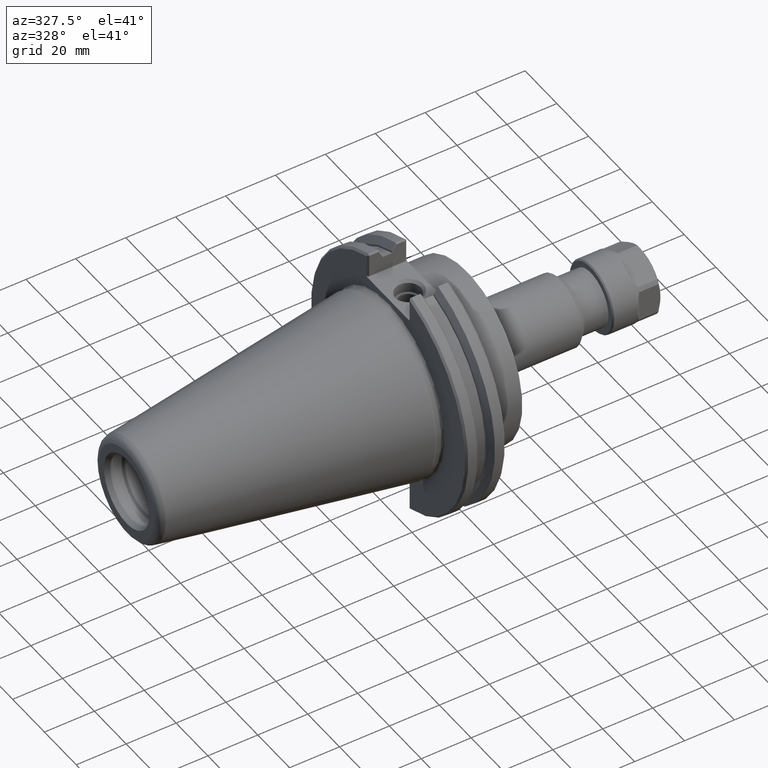
[diagram: clean part render]
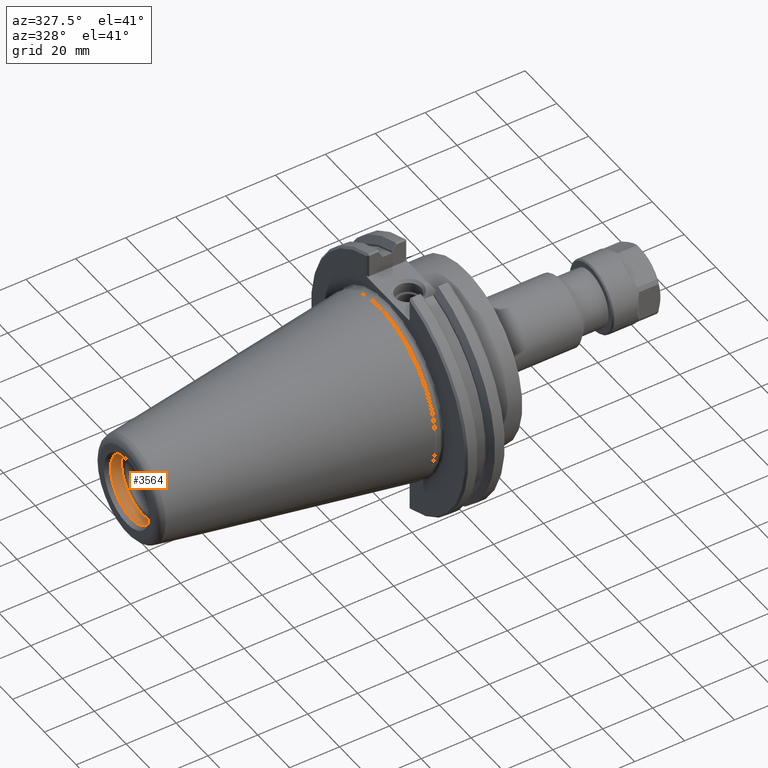
[diagram: same view with one face highlighted and labeled with its STEP entity id]
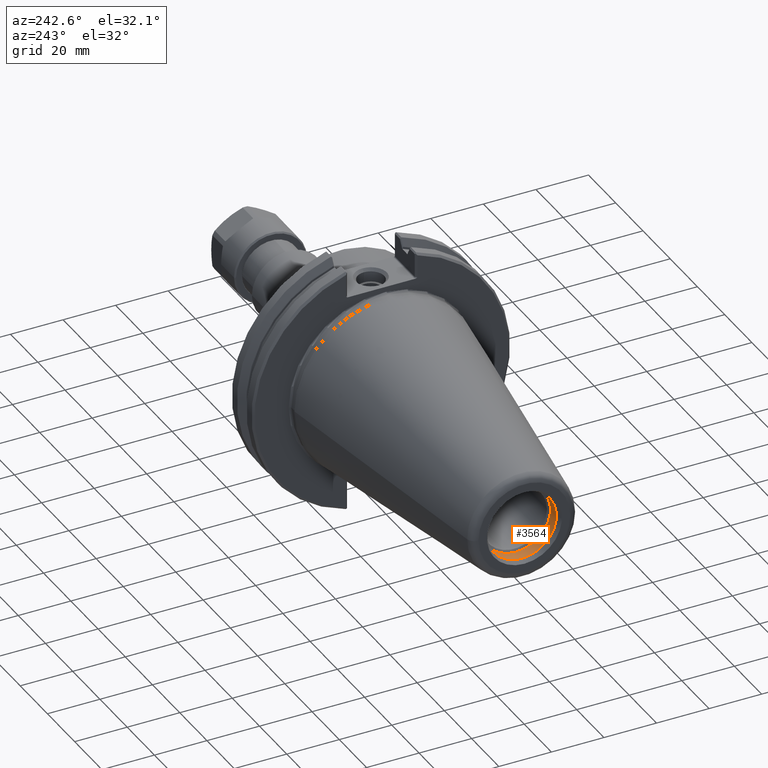
[diagram: same view with one face highlighted and labeled with its STEP entity id]
A machine part, auxiliary view. The second image highlights one B-rep face of the part: STEP entity #3564.
A second angle (auxiliary view) of the same face is appended — the face is thin or edge-on in the first view.
In plain terms, the highlighted cylindrical surface (bore or boss wall) has radius 13.1826 mm, axis along (-1, 0, 0).
Its self-contained STEP definition (entity closure, byte-faithful):
#3513=CARTESIAN_POINT('',(-3.75,0.0,0.519));
#3514=VERTEX_POINT('',#3513);
#3515=CARTESIAN_POINT('',(-3.75,0.0,0.0));
#3516=DIRECTION('',(-1.0,0.0,0.0));
#3517=DIRECTION('',(0.0,0.0,1.0));
#3518=AXIS2_PLACEMENT_3D('',#3515,#3516,#3517);
#3519=CIRCLE('',#3518,0.519);
#3520=EDGE_CURVE('',#3514,#3514,#3519,.T.);
#3541=CARTESIAN_POINT('',(-3.924655789870754,0.0,0.519));
#3542=VERTEX_POINT('',#3541);
#3543=CARTESIAN_POINT('',(-3.924655789870754,0.0,0.0));
#3544=DIRECTION('',(-1.0,0.0,0.0));
#3545=DIRECTION('',(0.0,0.0,1.0));
#3546=AXIS2_PLACEMENT_3D('',#3543,#3544,#3545);
#3547=CIRCLE('',#3546,0.519);
#3548=EDGE_CURVE('',#3542,#3542,#3547,.T.);
#3553=CARTESIAN_POINT('',(-3.875,0.0,0.0));
#3554=DIRECTION('',(-1.0,0.0,0.0));
#3555=DIRECTION('',(0.0,0.0,1.0));
#3556=AXIS2_PLACEMENT_3D('',#3553,#3554,#3555);
#3557=CYLINDRICAL_SURFACE('',#3556,0.519);
#3558=ORIENTED_EDGE('',*,*,#3548,.T.);
#3559=EDGE_LOOP('',(#3558));
#3560=FACE_OUTER_BOUND('',#3559,.T.);
#3561=ORIENTED_EDGE('',*,*,#3520,.F.);
#3562=EDGE_LOOP('',(#3561));
#3563=FACE_BOUND('',#3562,.T.);
#3564=ADVANCED_FACE('',(#3560,#3563),#3557,.F.);